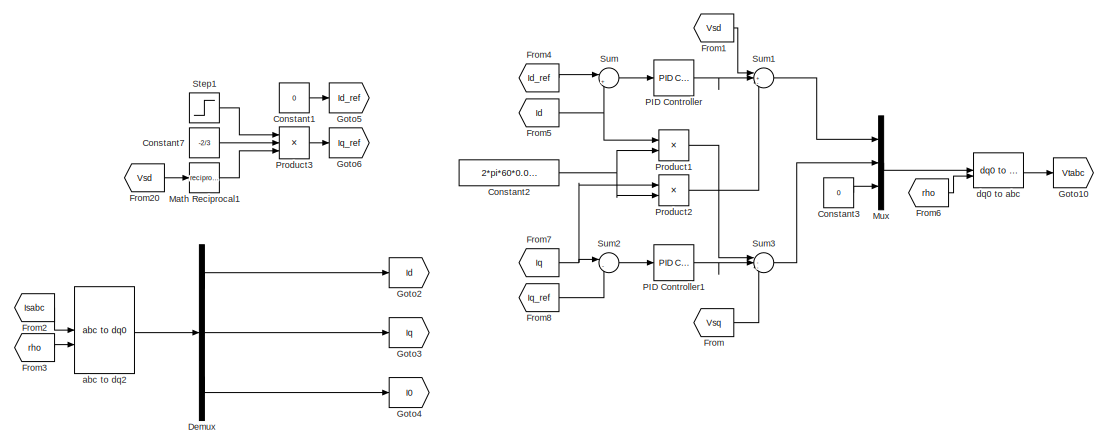
[diagram: root canvas - part 1/2, top center region]
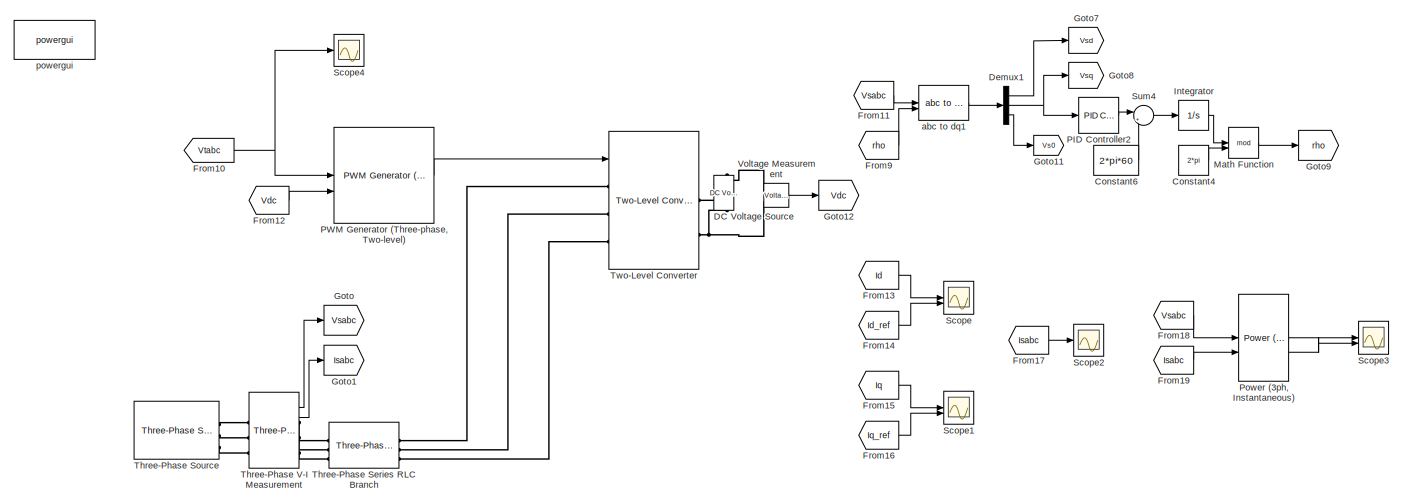
[diagram: root canvas - part 2/2, full width, bottom band]
MODEL slx_6746bb8a10e9
KIND model
CONFIG AbsTol = auto
CONFIG EnableMultiTasking = off
CONFIG FixedStep = auto
CONFIG MaxStep = auto
CONFIG MinStep = auto
CONFIG RelTol = 1e-3
CONFIG SampleTimeConstraint = Unconstrained
CONFIG SolverName = VariableStepAuto
CONFIG StartTime = 0.0
CONFIG StopTime = 0.15
BLOCK [Constant] Constant1
  Value = 0
BLOCK [Constant] Constant2
  Value = 2*pi*60*0.0013
BLOCK [Constant] Constant3
  Value = 0
BLOCK [Constant] Constant4
  Value = 2*pi
BLOCK [Constant] Constant6
  Value = 2*pi*60
BLOCK [Constant] Constant7
  Value = -2/3
BLOCK [Reference] DC Voltage Source  REF=spsDCVoltageSourceLib/DC Voltage Source
  LibrarySourceBlock = sps_lib/Sources/DC Voltage Source
  SourceBlock = spsDCVoltageSourceLib/DC Voltage Source
  SourceType = DC Voltage Source
BLOCK [Demux] Demux
  Outputs = 3
BLOCK [Demux] Demux1
  Outputs = 3
BLOCK [From] From
  GotoTag = Vsq
BLOCK [From] From1
  GotoTag = Vsd
BLOCK [From] From10
  GotoTag = Vtabc
BLOCK [From] From11
  GotoTag = Vsabc
BLOCK [From] From12
  GotoTag = Vdc
BLOCK [From] From13
  GotoTag = Id
BLOCK [From] From14
  GotoTag = Id_ref
BLOCK [From] From15
  GotoTag = Iq
BLOCK [From] From16
  GotoTag = Iq_ref
BLOCK [From] From17
  GotoTag = Isabc
BLOCK [From] From18
  GotoTag = Vsabc
BLOCK [From] From19
  GotoTag = Isabc
BLOCK [From] From2
  GotoTag = Isabc
BLOCK [From] From20
  GotoTag = Vsd
BLOCK [From] From3
  GotoTag = rho
BLOCK [From] From4
  GotoTag = Id_ref
BLOCK [From] From5
  GotoTag = Id
BLOCK [From] From6
  GotoTag = rho
BLOCK [From] From7
  GotoTag = Iq
BLOCK [From] From8
  GotoTag = Iq_ref
BLOCK [From] From9
  GotoTag = rho
BLOCK [Goto] Goto
  GotoTag = Vsabc
BLOCK [Goto] Goto1
  GotoTag = Isabc
BLOCK [Goto] Goto10
  GotoTag = Vtabc
BLOCK [Goto] Goto11
  GotoTag = Vs0
BLOCK [Goto] Goto12
  GotoTag = Vdc
BLOCK [Goto] Goto2
  GotoTag = Id
BLOCK [Goto] Goto3
  GotoTag = Iq
BLOCK [Goto] Goto4
  GotoTag = I0
BLOCK [Goto] Goto5
  GotoTag = Id_ref
BLOCK [Goto] Goto6
  GotoTag = Iq_ref
BLOCK [Goto] Goto7
  GotoTag = Vsd
BLOCK [Goto] Goto8
  GotoTag = Vsq
BLOCK [Goto] Goto9
  GotoTag = rho
BLOCK [Integrator] Integrator
BLOCK [Math] Math Function
  Operator = mod
BLOCK [Math] Math Reciprocal1
  Operator = reciprocal
  SignedPower = on
BLOCK [Mux] Mux
  DisplayOption = bar
  Inputs = 3
BLOCK [Reference] PID Controller  REF=slpidlib/PID Controller
  LibrarySourceBlock = simulink/Continuous/PID Controller
  SourceBlock = slpidlib/PID Controller
  SourceType = PID 1dof
BLOCK [Reference] PID Controller1  REF=slpidlib/PID Controller
  LibrarySourceBlock = simulink/Continuous/PID Controller
  SourceBlock = slpidlib/PID Controller
  SourceType = PID 1dof
BLOCK [Reference] PID Controller2  REF=slpidlib/PID Controller
  LibrarySourceBlock = simulink/Continuous/PID Controller
  SourceBlock = slpidlib/PID Controller
  SourceType = PID 1dof
BLOCK [Reference] PWM Generator (Three-phase, Two-level)  REF=eePwmGeneratorTwoLevel/PWM Generator
(Three-phase, Two-level)
  LibrarySourceBlock = ee_sl_lib/Pulse Width\nModulation/PWM Generator\n(Three-phase, Two-level)
  SourceBlock = eePwmGeneratorTwoLevel/PWM Generator\n(Three-phase, Two-level)
  SourceType = PWM Generator (three-phase, two-level)
BLOCK [Reference] Power (3ph, Instantaneous)  REF=spsPower3phInstantaneousLib/Power
(3ph, Instantaneous)
  LibrarySourceBlock = sps_lib/Sensors and Measurements/Power\n(3ph, Instantaneous)
  SourceBlock = spsPower3phInstantaneousLib/Power\n(3ph, Instantaneous)
  SourceType = Power (3ph, Instantaneous)
BLOCK [Product] Product1
BLOCK [Product] Product2
BLOCK [Product] Product3
  Inputs = 3
BLOCK [Scope] Scope
  Floating = off
  NumInputPorts = 2
  ScopeSpecificationString = Simulink.scopes.TimeScopeBlockCfg('CurrentConfiguration', extmgr.ConfigurationSet(extmgr.Configuration('Core','General UI',true),extmgr.Configuration('Core','Source UI',true),extmgr.Configuration('Sources','WiredSimulink',true),extmgr.Configuration('Visuals','Time Domain',true,'SerializedDisplays',{struct('MinYLimReal','-36.01207','MaxYLimReal','33.67187','YLabelReal','','MinYLimMag','0.00000','Ma...<+1511ch>
BLOCK [Scope] Scope1
  Floating = off
  NumInputPorts = 2
  ScopeSpecificationString = Simulink.scopes.TimeScopeBlockCfg('CurrentConfiguration', extmgr.ConfigurationSet(extmgr.Configuration('Core','General UI',true),extmgr.Configuration('Core','Source UI',true),extmgr.Configuration('Sources','WiredSimulink',true,'DataLoggingVariableName','ScopeData1'),extmgr.Configuration('Visuals','Time Domain',true,'SerializedDisplays',{struct('MinYLimReal','-195.87418','MaxYLimReal','45.84879','Y...<+1527ch>
BLOCK [Scope] Scope2
  Floating = off
  NumInputPorts = 1
  ScopeSpecificationString = Simulink.scopes.TimeScopeBlockCfg('CurrentConfiguration', extmgr.ConfigurationSet(extmgr.Configuration('Core','General UI',true),extmgr.Configuration('Core','Source UI',true),extmgr.Configuration('Sources','WiredSimulink',true,'DataLoggingVariableName','ScopeData2'),extmgr.Configuration('Visuals','Time Domain',true,'SerializedDisplays',{struct('MinYLimReal','-214.26497','MaxYLimReal','213.90199','...<+1583ch>
BLOCK [Scope] Scope3
  Floating = off
  NumInputPorts = 2
  ScopeSpecificationString = Simulink.scopes.TimeScopeBlockCfg('CurrentConfiguration', extmgr.ConfigurationSet(extmgr.Configuration('Core','General UI',true),extmgr.Configuration('Core','Source UI',true),extmgr.Configuration('Sources','WiredSimulink',true,'DataLoggingVariableName','ScopeData3'),extmgr.Configuration('Visuals','Time Domain',true,'SerializedDisplays',{struct('MinYLimReal','-38456.23385','MaxYLimReal','139793.778...<+1567ch>
BLOCK [Scope] Scope4
  Floating = off
  NumInputPorts = 1
  ScopeSpecificationString = Simulink.scopes.TimeScopeBlockCfg('CurrentConfiguration', extmgr.ConfigurationSet(extmgr.Configuration('Core','General UI',true),extmgr.Configuration('Core','Source UI',true),extmgr.Configuration('Sources','WiredSimulink',true,'DataLoggingVariableName','ScopeData1'),extmgr.Configuration('Visuals','Time Domain',true,'SerializedDisplays',{struct('MinYLimReal','-512.66178','MaxYLimReal','512.66356','...<+1552ch>
BLOCK [Step] Step1
  After = 100000
  SampleTime = 0.0001
  Time = 0.04
BLOCK [Sum] Sum
  Inputs = |+-
BLOCK [Sum] Sum1
  Inputs = |+-+
BLOCK [Sum] Sum2
  Inputs = |-+
BLOCK [Sum] Sum3
  Inputs = |--+
BLOCK [Sum] Sum4
  Inputs = |++
BLOCK [Reference] Three-Phase Series RLC Branch  REF=spsThreePhaseSeriesRLCBranchLib/Three-Phase
Series RLC Branch
  AttributesFormatString = \n
  LibrarySourceBlock = sps_lib/Passives/Three-Phase\nSeries RLC Branch
  SourceBlock = spsThreePhaseSeriesRLCBranchLib/Three-Phase\nSeries RLC Branch
  SourceType = Three-Phase Series RLC Branch
BLOCK [Reference] Three-Phase Source  REF=spsThreePhaseSourceLib/Three-Phase Source
  LibrarySourceBlock = sps_lib/Sources/Three-Phase Source
  SourceBlock = spsThreePhaseSourceLib/Three-Phase Source
  SourceType = Three-Phase Source
BLOCK [Reference] Three-Phase V-I Measurement  REF=spsThreePhaseVIMeasurementLib/Three-Phase
V-I Measurement
  LibrarySourceBlock = sps_lib/Sensors and Measurements/Three-Phase\nV-I Measurement
  SourceBlock = spsThreePhaseVIMeasurementLib/Three-Phase\nV-I Measurement
  SourceType = Three-Phase VI Measurement
BLOCK [Reference] Two-Level Converter  REF=spsTwoLevelConverterLib/Two-Level Converter
  LibrarySourceBlock = sps_lib/Power Electronics/Two-Level Converter
  SourceBlock = spsTwoLevelConverterLib/Two-Level Converter
  SourceType = Two-Level Converter
BLOCK [Reference] Voltage Measurement  REF=spsVoltageMeasurementLib/Voltage Measurement
  LibrarySourceBlock = sps_lib/Sensors and Measurements/Voltage Measurement
  SourceBlock = spsVoltageMeasurementLib/Voltage Measurement
  SourceType = Voltage Measurement
  UserDataPersistent = on
BLOCK [Reference] abc to dq1  REF=spsabctodq0Lib/abc to dq0
  LibrarySourceBlock = sps_lib/Control/abc to dq0
  SourceBlock = spsabctodq0Lib/abc to dq0
  SourceType = abc to dq0 Transformation
BLOCK [Reference] abc to dq2  REF=spsabctodq0Lib/abc to dq0
  LibrarySourceBlock = sps_lib/Control/abc to dq0
  SourceBlock = spsabctodq0Lib/abc to dq0
  SourceType = abc to dq0 Transformation
BLOCK [Reference] dq0 to abc  REF=spsdq0toabcLib/dq0 to abc
  LibrarySourceBlock = sps_lib/Control/dq0 to abc
  SourceBlock = spsdq0toabcLib/dq0 to abc
  SourceType = dq0 to abc Transformation
BLOCK [Reference] powergui  REF=sps_lib/powergui
  LibrarySourceBlock = sps_lib/powergui
  Priority = 1
  SourceBlock = sps_lib/powergui
  SourceType = PSB option menu block
LINE Constant1:1 -> Goto5:1
NET Constant2:1 -> Product1:2, Product2:2
LINE Constant3:1 -> Mux:3
LINE Constant4:1 -> Math Function:2
LINE Constant6:1 -> Sum4:2
LINE Constant7:1 -> Product3:2
LINE Demux1:1 -> Goto7:1
NET Demux1:2 -> Goto8:1, PID Controller2:1
LINE Demux1:3 -> Goto11:1
LINE Demux:1 -> Goto2:1
LINE Demux:2 -> Goto3:1
LINE Demux:3 -> Goto4:1
NET From10:1 -> PWM Generator (Three-phase, Two-level):1, Scope4:1
LINE From11:1 -> abc to dq1:1
LINE From12:1 -> PWM Generator (Three-phase, Two-level):2
LINE From13:1 -> Scope:1
LINE From14:1 -> Scope:2
LINE From15:1 -> Scope1:1
LINE From16:1 -> Scope1:2
LINE From17:1 -> Scope2:1
LINE From18:1 -> Power (3ph, Instantaneous):1
LINE From19:1 -> Power (3ph, Instantaneous):2
LINE From1:1 -> Sum1:1
LINE From20:1 -> Math Reciprocal1:1
LINE From2:1 -> abc to dq2:1
LINE From3:1 -> abc to dq2:2
LINE From4:1 -> Sum:1
NET From5:1 -> Product1:1, Sum:2
LINE From6:1 -> dq0 to abc:2
NET From7:1 -> Product2:1, Sum2:1
LINE From8:1 -> Sum2:2
LINE From9:1 -> abc to dq1:2
LINE From:1 -> Sum3:3
LINE Integrator:1 -> Math Function:1
LINE Math Function:1 -> Goto9:1
LINE Math Reciprocal1:1 -> Product3:3
LINE Mux:1 -> dq0 to abc:1
LINE PID Controller1:1 -> Sum3:2
LINE PID Controller2:1 -> Sum4:1
LINE PID Controller:1 -> Sum1:2
LINE PWM Generator (Three-phase, Two-level):1 -> Two-Level Converter:1
LINE Power (3ph, Instantaneous):1 -> Scope3:1
LINE Power (3ph, Instantaneous):2 -> Scope3:2
LINE Product1:1 -> Sum3:1
LINE Product2:1 -> Sum1:3
LINE Product3:1 -> Goto6:1
LINE Step1:1 -> Product3:1
LINE Sum1:1 -> Mux:1
LINE Sum2:1 -> PID Controller1:1
LINE Sum3:1 -> Mux:2
LINE Sum4:1 -> Integrator:1
LINE Sum:1 -> PID Controller:1
LINE Three-Phase V-I Measurement:1 -> Goto:1
LINE Three-Phase V-I Measurement:2 -> Goto1:1
LINE Voltage Measurement:1 -> Goto12:1
LINE abc to dq1:1 -> Demux1:1
LINE abc to dq2:1 -> Demux:1
LINE dq0 to abc:1 -> Goto10:1
PNET net1: DC Voltage Source:LConn1 -- Two-Level Converter:RConn2 -- Voltage Measurement:LConn2
PNET net2: DC Voltage Source:RConn1 -- Two-Level Converter:RConn1 -- Voltage Measurement:LConn1
PLINE Three-Phase Series RLC Branch:LConn1 -- Three-Phase V-I Measurement:RConn1
PLINE Three-Phase Series RLC Branch:LConn2 -- Three-Phase V-I Measurement:RConn2
PLINE Three-Phase Series RLC Branch:LConn3 -- Three-Phase V-I Measurement:RConn3
PLINE Three-Phase Series RLC Branch:RConn1 -- Two-Level Converter:LConn1
PLINE Three-Phase Series RLC Branch:RConn2 -- Two-Level Converter:LConn2
PLINE Three-Phase Series RLC Branch:RConn3 -- Two-Level Converter:LConn3
PLINE Three-Phase Source:RConn1 -- Three-Phase V-I Measurement:LConn1
PLINE Three-Phase Source:RConn2 -- Three-Phase V-I Measurement:LConn2
PLINE Three-Phase Source:RConn3 -- Three-Phase V-I Measurement:LConn3
note: NET lines group one-source signal fan-out (src -> all destinations, sorted); 1:1 wires keep LINE; PNET lines group multi-terminal physical nets as a canonical sorted terminal list (undirected conserving connections); 2-terminal nets keep the pairwise PLINE form
